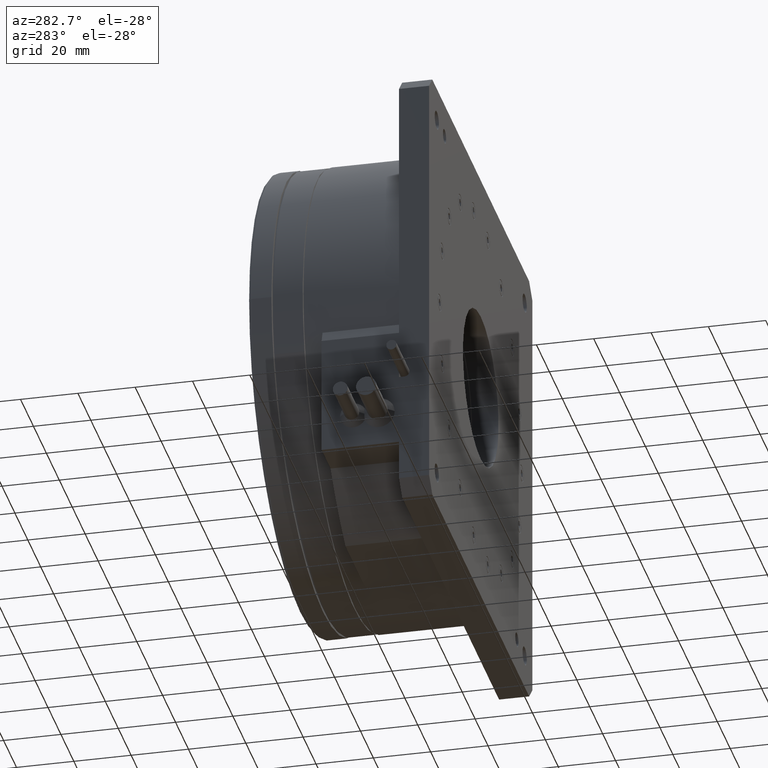
[diagram: clean part render]
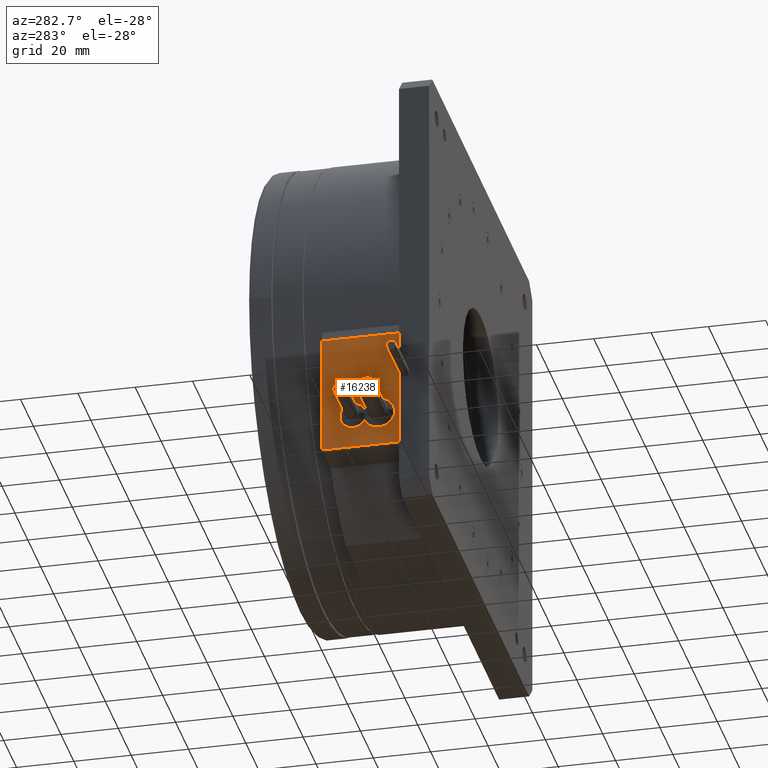
[diagram: same view with one face highlighted and labeled with its STEP entity id]
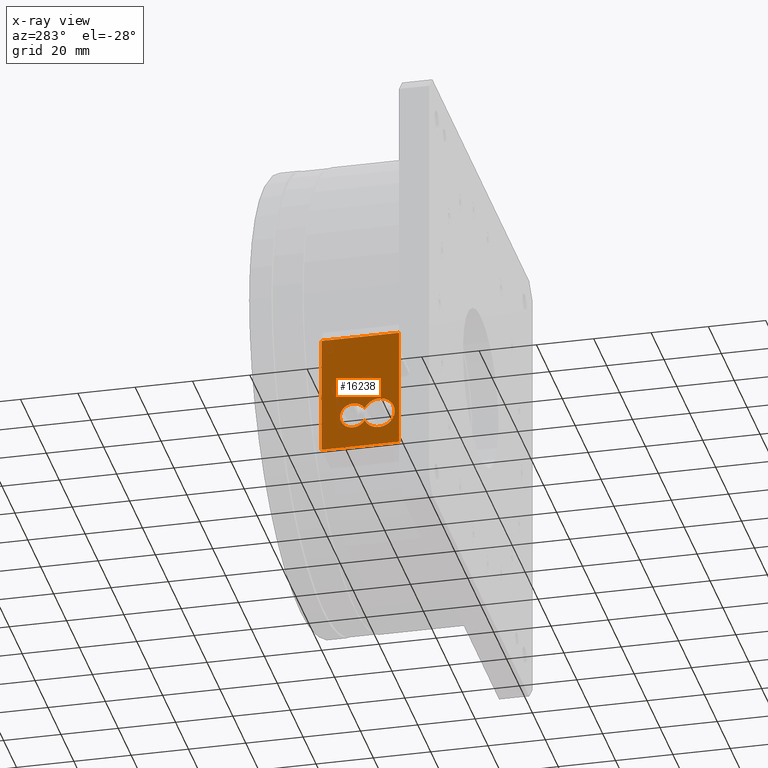
[diagram: x-ray of the same camera — body ghosted, the highlighted face saturated]
A machine part, auxiliary view. The second image highlights one B-rep face of the part: STEP entity #16238.
The next image is the same camera in x-ray: the body ghosted, the highlighted face saturated — about 0% of this face is hidden behind the body in this view.
In plain terms, the highlighted planar face has unit normal (1, -0, 0).
Its self-contained STEP definition (entity closure, byte-faithful):
#78 = CARTESIAN_POINT ( 'NONE',  ( 0.009999999999996123100, 10.50000000000000200, -116.0500000000000400 ) ) ;
#142 = CARTESIAN_POINT ( 'NONE',  ( 0.009999999999996123100, 37.50000000000000000, -141.0000000000000600 ) ) ;
#360 = VERTEX_POINT ( 'NONE', #142 ) ;
#878 = FACE_OUTER_BOUND ( 'NONE', #8012, .T. ) ;
#1059 = CARTESIAN_POINT ( 'NONE',  ( 0.009999999999996123100, 10.50000000000000000, -141.0000000000000600 ) ) ;
#1069 = PLANE ( 'NONE',  #15157 ) ;
#1118 = DIRECTION ( 'NONE',  ( -1.841375972284166200E-018, -1.000000000000000000, 0.0000000000000000000 ) ) ;
#1204 = VECTOR ( 'NONE', #12340, 1000.000000000000000 ) ;
#1327 = EDGE_CURVE ( 'NONE', #3416, #13762, #10452, .T. ) ;
#1559 = CARTESIAN_POINT ( 'NONE',  ( 0.009999999990656371900, 26.50000000000000400, -129.0000000000000600 ) ) ;
#1995 = CARTESIAN_POINT ( 'NONE',  ( 0.01000000000714318400, 22.50499999999474500, -131.2803453686169900 ) ) ;
#2046 = AXIS2_PLACEMENT_3D ( 'NONE', #13498, #12089, #4111 ) ;
#2166 = CARTESIAN_POINT ( 'NONE',  ( 0.01000000004749979600, 11.99999999996453100, -129.0000000000000600 ) ) ;
#2204 = CARTESIAN_POINT ( 'NONE',  ( 0.009999999999996123100, 10.50000000000000200, -99.00000000000005700 ) ) ;
#2306 = DIRECTION ( 'NONE',  ( 9.020562075079401800E-017, -5.543721698860720200E-017, -1.000000000000000000 ) ) ;
#2473 = EDGE_CURVE ( 'NONE', #8052, #3416, #14391, .T. ) ;
#2680 = CIRCLE ( 'NONE', #15135, 5.500000000035469400 ) ;
#2706 = CARTESIAN_POINT ( 'NONE',  ( 0.009999999999996123100, 10.50000000000000400, -80.00000000000004300 ) ) ;
#3416 = VERTEX_POINT ( 'NONE', #14388 ) ;
#3505 = VERTEX_POINT ( 'NONE', #78 ) ;
#3954 = ORIENTED_EDGE ( 'NONE', *, *, #2473, .F. ) ;
#4051 = EDGE_LOOP ( 'NONE', ( #14962, #3954, #12017, #12655 ) ) ;
#4111 = DIRECTION ( 'NONE',  ( -1.848071884906555200E-018, -1.000000000000000000, 0.0000000000000000000 ) ) ;
#4255 = LINE ( 'NONE', #4995, #7374 ) ;
#4319 = DIRECTION ( 'NONE',  ( -1.841375972284166200E-018, -1.000000000000000000, 0.0000000000000000000 ) ) ;
#4399 = LINE ( 'NONE', #8238, #11102 ) ;
#4442 = VERTEX_POINT ( 'NONE', #2204 ) ;
#4928 = CARTESIAN_POINT ( 'NONE',  ( 0.009999999999996123100, 37.50000000000000000, -141.0000000000000600 ) ) ;
#4995 = CARTESIAN_POINT ( 'NONE',  ( 0.009999999999996123100, 10.50000000000000000, -141.0000000000000600 ) ) ;
#5112 = EDGE_CURVE ( 'NONE', #13762, #16014, #5212, .T. ) ;
#5198 = LINE ( 'NONE', #8211, #1204 ) ;
#5200 = DIRECTION ( 'NONE',  ( -1.000000000000000000, -8.642049017973240700E-019, -9.020562075079404300E-017 ) ) ;
#5212 = CIRCLE ( 'NONE', #9602, 4.600000000019463200 ) ;
#5635 = ORIENTED_EDGE ( 'NONE', *, *, #14394, .T. ) ;
#5949 = EDGE_CURVE ( 'NONE', #16014, #8052, #2680, .T. ) ;
#6004 = CARTESIAN_POINT ( 'NONE',  ( 0.009999999990656368400, 31.10000000001946700, -129.0000000000000600 ) ) ;
#6119 = DIRECTION ( 'NONE',  ( -1.848071884906555200E-018, -1.000000000000000000, 0.0000000000000000000 ) ) ;
#6321 = DIRECTION ( 'NONE',  ( 1.000000000000000000, -1.728409803594620600E-018, 9.020562075079404300E-017 ) ) ;
#6729 = DIRECTION ( 'NONE',  ( -1.728409803594638100E-018, -1.000000000000000000, 1.944368977947036900E-016 ) ) ;
#7374 = VECTOR ( 'NONE', #2306, 1000.000000000000000 ) ;
#7854 = EDGE_CURVE ( 'NONE', #14826, #360, #8672, .T. ) ;
#8012 = EDGE_LOOP ( 'NONE', ( #8067, #5635, #10186, #10980, #13404, #14681 ) ) ;
#8032 = DIRECTION ( 'NONE',  ( -9.020562075079401800E-017, 5.543721698860720200E-017, 1.000000000000000000 ) ) ;
#8052 = VERTEX_POINT ( 'NONE', #2166 ) ;
#8067 = ORIENTED_EDGE ( 'NONE', *, *, #8619, .F. ) ;
#8211 = CARTESIAN_POINT ( 'NONE',  ( 0.009999999999996123100, 37.50000000000000000, -141.0000000000000600 ) ) ;
#8225 = DIRECTION ( 'NONE',  ( -1.000000000000000000, -8.642049017973240700E-019, -9.020562075079404300E-017 ) ) ;
#8238 = CARTESIAN_POINT ( 'NONE',  ( 0.009999999999996123100, 37.50000000000000700, -99.00000000000005700 ) ) ;
#8619 = EDGE_CURVE ( 'NONE', #10818, #3505, #4255, .T. ) ;
#8672 = LINE ( 'NONE', #15240, #10163 ) ;
#9602 = AXIS2_PLACEMENT_3D ( 'NONE', #1559, #8225, #4319 ) ;
#10013 = CARTESIAN_POINT ( 'NONE',  ( 0.01000000004749979100, 17.50000000000000000, -129.0000000000000600 ) ) ;
#10163 = VECTOR ( 'NONE', #11135, 1000.000000000000000 ) ;
#10186 = ORIENTED_EDGE ( 'NONE', *, *, #10259, .F. ) ;
#10259 = EDGE_CURVE ( 'NONE', #14189, #4442, #4399, .T. ) ;
#10263 = LINE ( 'NONE', #2706, #13419 ) ;
#10452 = CIRCLE ( 'NONE', #16982, 4.600000000019463200 ) ;
#10792 = EDGE_CURVE ( 'NONE', #14826, #3505, #11753, .T. ) ;
#10818 = VERTEX_POINT ( 'NONE', #16125 ) ;
#10846 = DIRECTION ( 'NONE',  ( -9.020562075079401800E-017, 5.543721698860720200E-017, 1.000000000000000000 ) ) ;
#10911 = CARTESIAN_POINT ( 'NONE',  ( 0.009999999999996123100, 10.50000000000000400, -80.00000000000004300 ) ) ;
#10980 = ORIENTED_EDGE ( 'NONE', *, *, #11993, .F. ) ;
#11102 = VECTOR ( 'NONE', #6729, 1000.000000000000000 ) ;
#11135 = DIRECTION ( 'NONE',  ( 1.728409803594638100E-018, 1.000000000000000000, -1.944368977947036900E-016 ) ) ;
#11145 = FACE_BOUND ( 'NONE', #4051, .T. ) ;
#11313 = VECTOR ( 'NONE', #8032, 1000.000000000000000 ) ;
#11753 = LINE ( 'NONE', #10911, #11313 ) ;
#11993 = EDGE_CURVE ( 'NONE', #360, #14189, #5198, .T. ) ;
#12017 = ORIENTED_EDGE ( 'NONE', *, *, #5949, .F. ) ;
#12089 = DIRECTION ( 'NONE',  ( -1.000000000000000000, -8.642049017973240700E-019, -9.020562075079404300E-017 ) ) ;
#12340 = DIRECTION ( 'NONE',  ( -9.020562075079401800E-017, 5.543721698860720200E-017, 1.000000000000000000 ) ) ;
#12655 = ORIENTED_EDGE ( 'NONE', *, *, #5112, .F. ) ;
#13404 = ORIENTED_EDGE ( 'NONE', *, *, #7854, .F. ) ;
#13419 = VECTOR ( 'NONE', #10846, 1000.000000000000000 ) ;
#13498 = CARTESIAN_POINT ( 'NONE',  ( 0.01000000004749979100, 17.50000000000000000, -129.0000000000000600 ) ) ;
#13762 = VERTEX_POINT ( 'NONE', #6004 ) ;
#14189 = VERTEX_POINT ( 'NONE', #16850 ) ;
#14323 = DIRECTION ( 'NONE',  ( -1.728409803594638100E-018, -1.000000000000000000, 1.944368977947036900E-016 ) ) ;
#14388 = CARTESIAN_POINT ( 'NONE',  ( 0.01000000002190915000, 22.50500000000490900, -126.7196546314079300 ) ) ;
#14391 = CIRCLE ( 'NONE', #2046, 5.500000000035469400 ) ;
#14394 = EDGE_CURVE ( 'NONE', #10818, #4442, #10263, .T. ) ;
#14681 = ORIENTED_EDGE ( 'NONE', *, *, #10792, .T. ) ;
#14826 = VERTEX_POINT ( 'NONE', #1059 ) ;
#14962 = ORIENTED_EDGE ( 'NONE', *, *, #1327, .F. ) ;
#15135 = AXIS2_PLACEMENT_3D ( 'NONE', #10013, #16629, #6119 ) ;
#15157 = AXIS2_PLACEMENT_3D ( 'NONE', #4928, #6321, #14323 ) ;
#15240 = CARTESIAN_POINT ( 'NONE',  ( 0.009999999999996123100, 37.50000000000000000, -141.0000000000000600 ) ) ;
#16014 = VERTEX_POINT ( 'NONE', #1995 ) ;
#16125 = CARTESIAN_POINT ( 'NONE',  ( 0.009999999999996123100, 10.50000000000000200, -112.3500000000000700 ) ) ;
#16238 = ADVANCED_FACE ( 'NONE', ( #878, #11145 ), #1069, .F. ) ;
#16629 = DIRECTION ( 'NONE',  ( -1.000000000000000000, -8.642049017973240700E-019, -9.020562075079404300E-017 ) ) ;
#16850 = CARTESIAN_POINT ( 'NONE',  ( 0.009999999999996123100, 37.50000000000000700, -99.00000000000005700 ) ) ;
#16982 = AXIS2_PLACEMENT_3D ( 'NONE', #17173, #5200, #1118 ) ;
#17173 = CARTESIAN_POINT ( 'NONE',  ( 0.009999999990656371900, 26.50000000000000400, -129.0000000000000600 ) ) ;